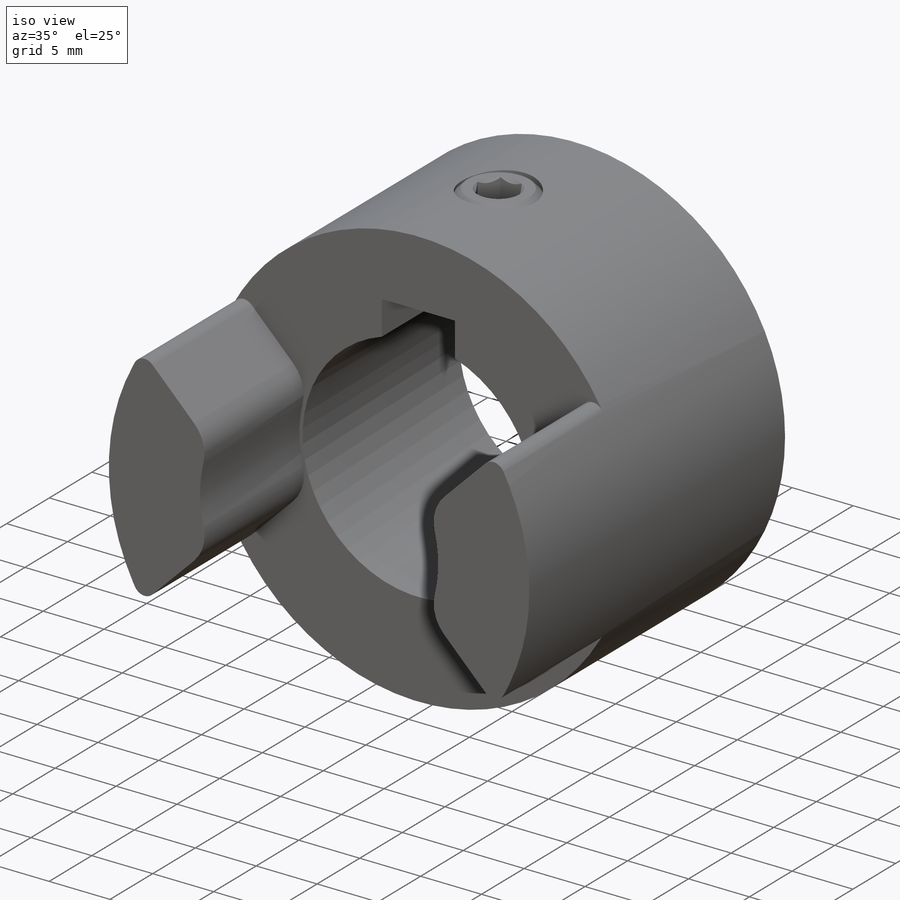
[diagram: iso view]
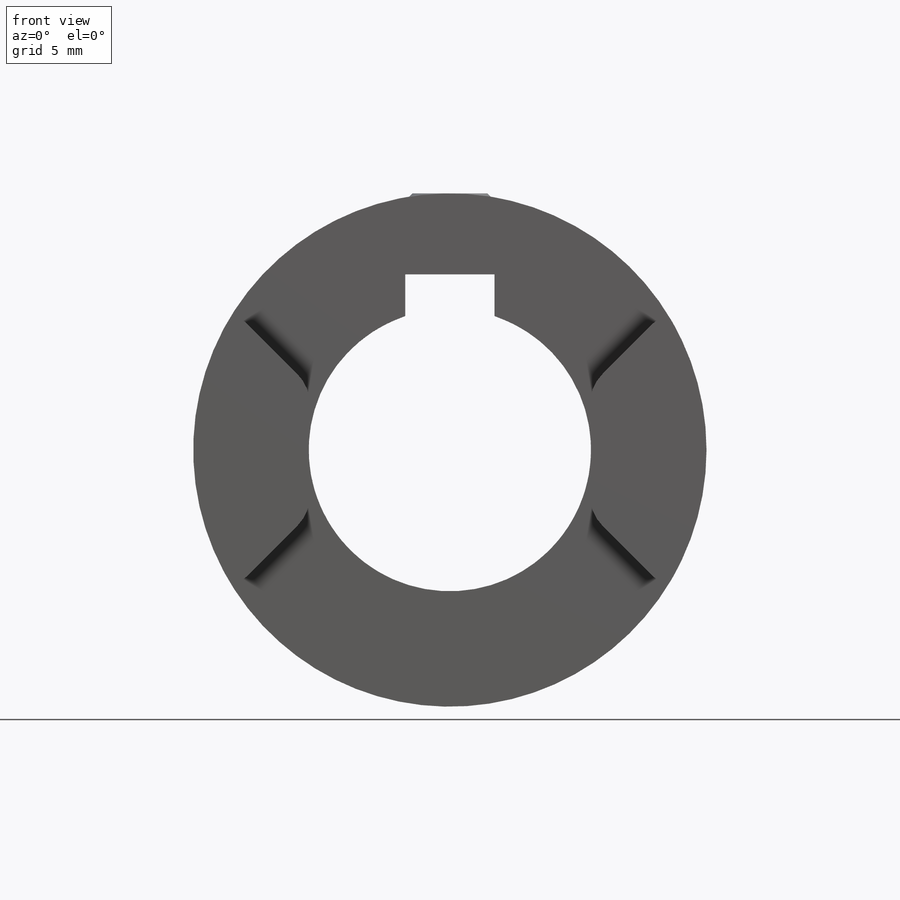
[diagram: front view]
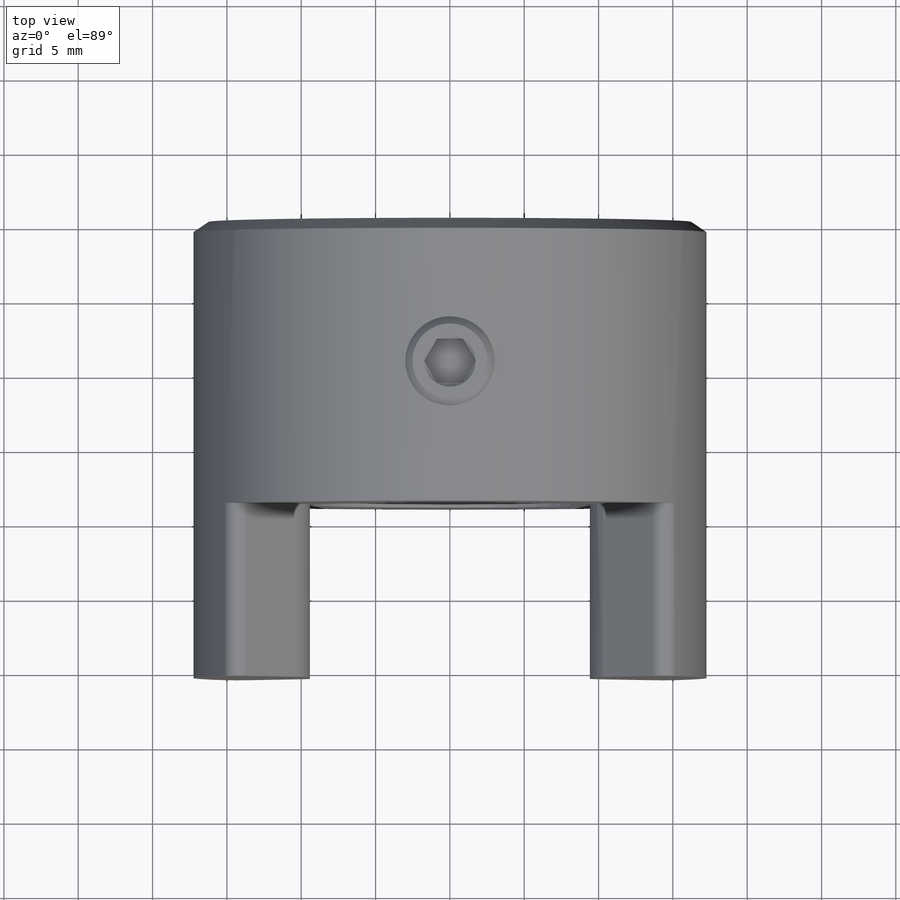
[diagram: top view]
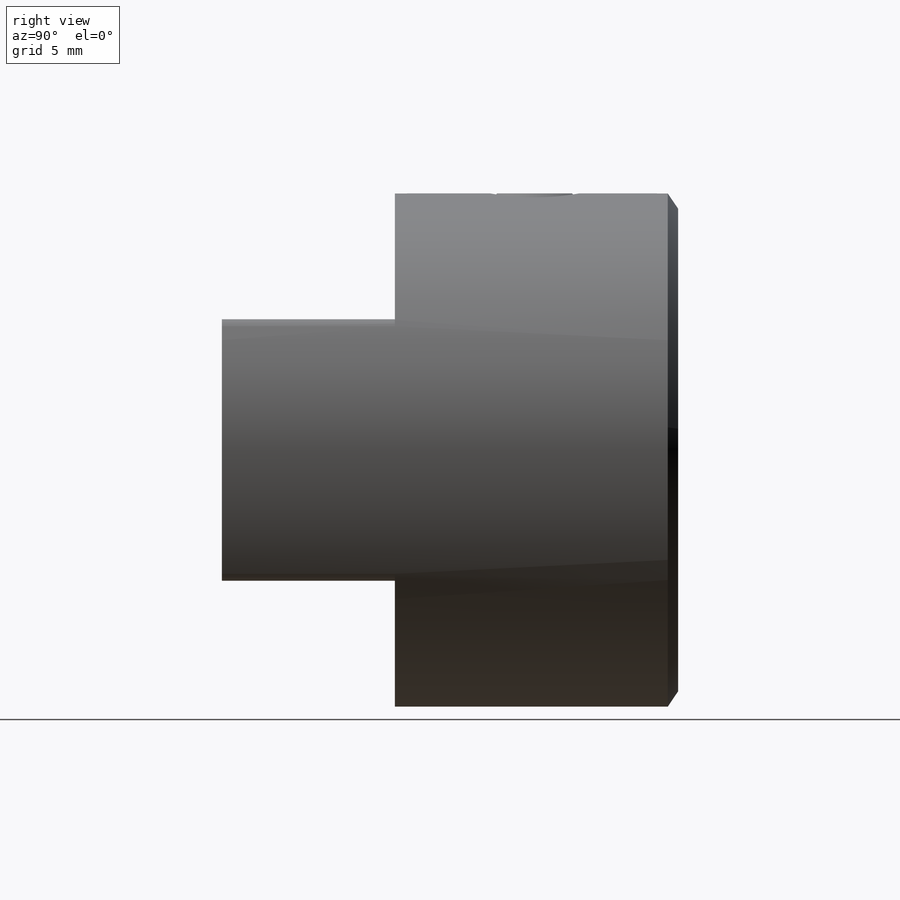
[diagram: right view]
SOLIDWORKS PART (.sldprt)
format: sldprt  version: not decoded by parser v0  size: 550,400 bytes
history: native  units: mm
features: sketch x14, cut_extrude x7, extrude x6, fillet x5, pattern_circular x4, chamfer x4, move_body x2, material x1, plane x1 (+23 scaffold rows collapsed; 8 parser-record rows omitted)
feature tree (75):
  scaffold x23  (default folders/planes/origin — collapsed)
  material  "Material <not specified>"
  sketch  "Sketch3"  dims[c1.OD=~84.534375mm c1.Shaft Dia=25.4mm c1.Spider Thickness=11.1125mm c2.Shaft Dia=19.0mm c2.OD=~34.528125mm c2.Overall Lg=~50.403125mm c3.OD=~47.476249mm c3.Bore Depth=19.05mm c3.Lug Lg=11.6332mm]
  sketch  "Sketch1"  dims[OD=~84.534375mm Shaft Dia=25.4mm]
  extrude  "Boss-Extrude1"  [1 undecoded]
  parser-record x8  (decoder bookkeeping rows leaked as tree rows — omitted from the tree; the rows remain in map.json)
  sketch  "Sketch10"  dims[c1.D1=9.4234mm c1.D4=9.4234mm c1.D2=~6.881867mm c1.D3=~3.673743mm c2.D4=~1.636351mm c2.D1=3.302mm c2.D3=~1.950311mm c3.D1=3.683mm c3.D3=~2.192636mm]
  extrude  "Boss-Extrude4"  [1 undecoded]
  fillet  "Fillet2"  Radius=0.381mm
  pattern_circular  "CirPattern2"  Count=2 Angle=360deg
  sketch  "Sketch11"  dims[c1.D1=1.4478mm c1.D2=8.001mm c1.D3=10.7442mm c1.D4=0.889mm c1.D9=13.6525mm c1.D5=~5.071961mm c1.D6=~3.156264mm c1.D7=~5.913923mm c1.D8=~9.948636mm c2.D9=5.6515mm]
  extrude  "Boss-Extrude5"  [1 undecoded]
  pattern_circular  "CirPattern3"  Count=2 Angle=360deg
  sketch  "Sketch12"  dims[D1=~7.482203mm D2=~10.219339mm D3=~4.688386mm D4=~17.065981mm D5=~16.659783mm]
  extrude  "Boss-Extrude6"  [1 undecoded]
  pattern_circular  "CirPattern4"  Count=2 Angle=360deg
  sketch  "Sketch2"  dims[c1.Spider Inner body Dia=45.974mm c1.Spider Leg Thickness=11.5316mm c1.D4=22.987mm c1.D1=~13.272132mm c2.D1=60.0deg c2.D4=~12.265481mm]
  extrude  "Boss-Extrude2"  [1 undecoded]
  fillet  "Fillet1"  Radius=1.226548mm
  pattern_circular  "CirPattern1"  Count=3 Angle=360deg
  sketch  "Sketch15"
  cut_extrude  "Cut-Extrude5"  [1 undecoded]
  chamfer  "Chamfer1"  Distance=0.690562mm Angle=56deg
  sketch  "Sketch4"  dims[Keyway Ht=2.8mm Keyway Wd=6.0mm]
  cut_extrude  "Cut-Extrude1"  [1 undecoded]
  sketch  "Sketch5"  dims[Screw Dia=6.0mm Screw Offset=9.652mm]
  cut_extrude  "Cut-Extrude2"  [1 undecoded]
  plane  "Plane1"
  sketch  "Sketch6"  dims[D1=0.0mm]
  extrude  "Boss-Extrude3"  Depth=5mm screw length=5mm
  sketch  "Sketch8"  dims[D1=3.0mm]
  cut_extrude  "Cut-Extrude3"  Depth=1.8mm
  sketch  "Sketch9"
  cut_extrude  "Cut-Extrude4"  [1 undecoded]
  chamfer  "Chamfer3"  Distance=0.48mm Angle=45deg
  chamfer  "Chamfer4"  Distance=1.02mm Angle=45deg
  sketch  "Sketch16"  dims[D1=101.6mm]
  cut_extrude  "Cut-Extrude6"  Depth=30.3022mm
  chamfer  "Chamfer5"  Distance=1.778mm Angle=56deg
  fillet  "Fillet3"  Radius=1.27mm
  move_body  "Body-Move/Copy1"
  sketch  "Sketch17"  dims[D1=107.95mm]
  cut_extrude  "Cut-Extrude7"  Depth=36.576mm
  move_body  "Body-Move/Copy2"
  fillet  "Fillet4"  Radius=2.54mm
  fillet  "Fillet5"  Radius=1.27mm
decode coverage: 29 of 42 modeling features carry decoded parameters
note: ~ marks probable driven/reference dimensions
note: 9 parameter values undecoded
summary: no parameter record found for 9 features
note: suppression state not decoded; provenance and decode notes live in map.json
